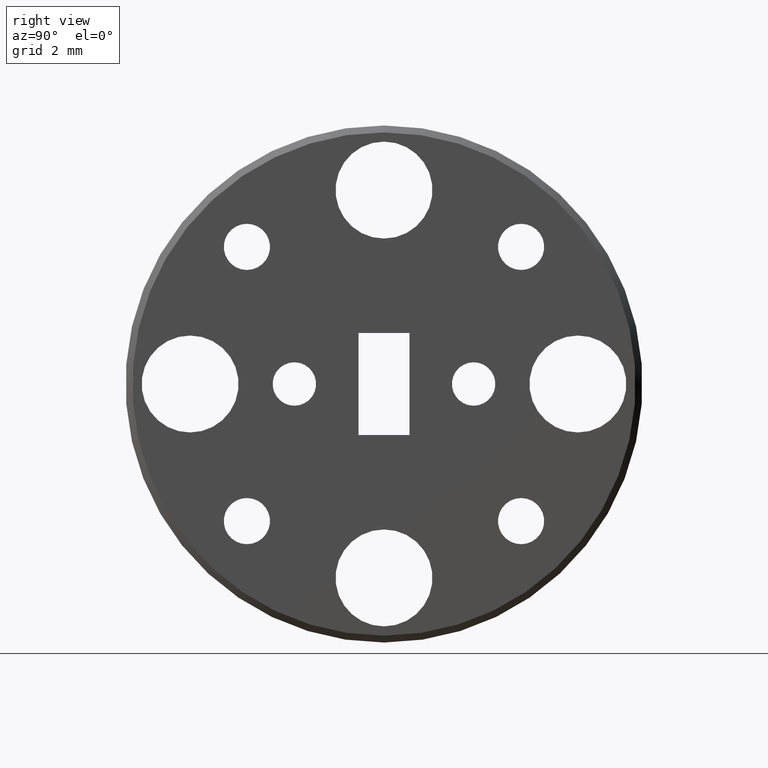
[diagram: clean part render]
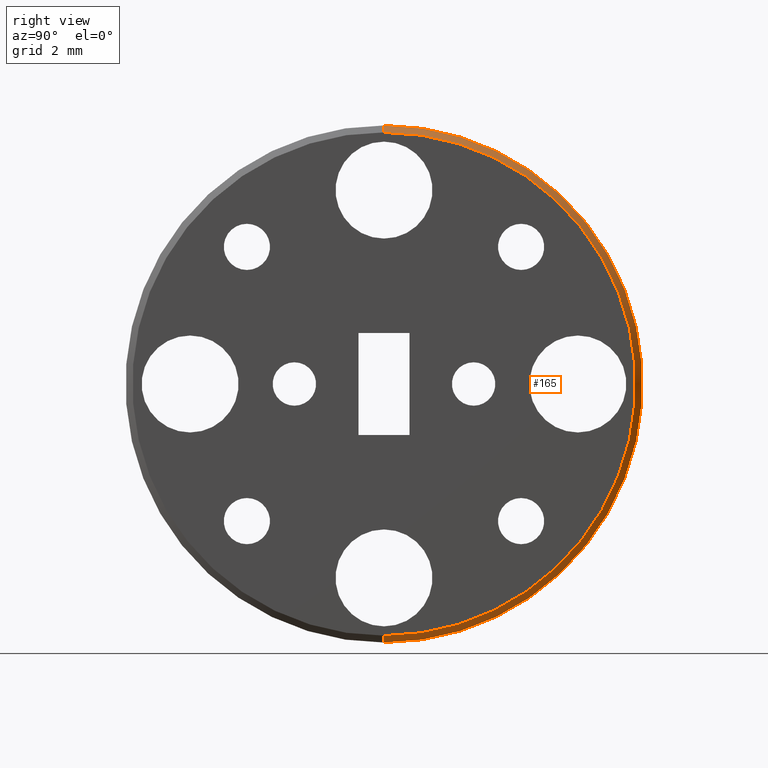
[diagram: same view with one face highlighted and labeled with its STEP entity id]
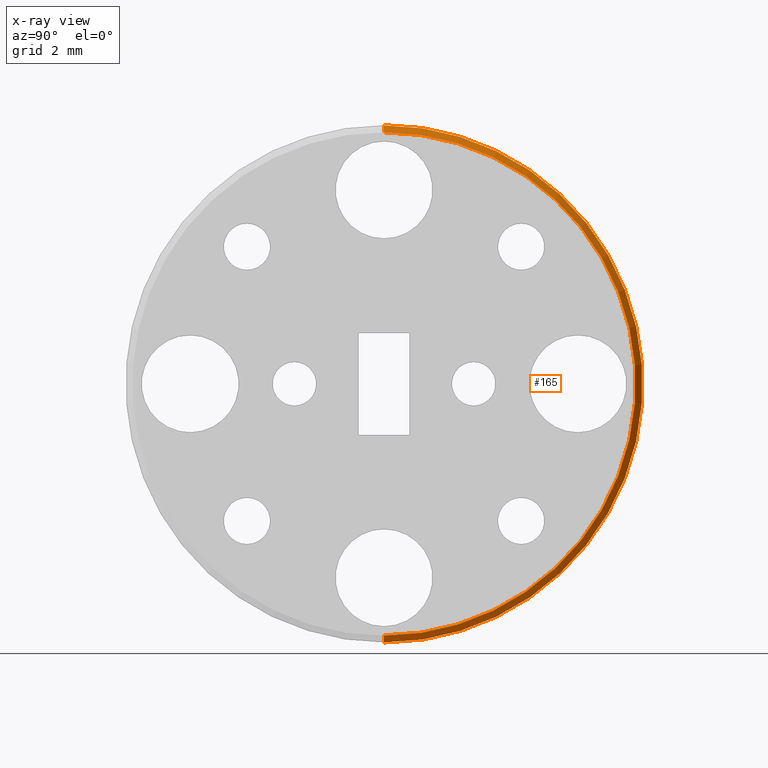
[diagram: x-ray of the same camera — body ghosted, the highlighted face saturated]
A machine part, right view. The second image highlights one B-rep face of the part: STEP entity #165.
The next image is the same camera in x-ray: the body ghosted, the highlighted face saturated — about 0% of this face is hidden behind the body in this view.
In plain terms, the highlighted conical surface has half-angle 45 deg.
Its self-contained STEP definition (entity closure, byte-faithful):
#18 = DIRECTION ( 'NONE',  ( 0.0000000000000000000, 0.0000000000000000000, -1.000000000000000000 ) ) ;
#122 = DIRECTION ( 'NONE',  ( -1.000000000000000000, 0.0000000000000000000, 0.0000000000000000000 ) ) ;
#144 = CARTESIAN_POINT ( 'NONE',  ( 0.05099999999999992000, 0.0000000000000000000, -0.3750000000000000600 ) ) ;
#155 = CARTESIAN_POINT ( 'NONE',  ( 0.06100000000000001900, 4.469960816887838600E-017, -0.3649999999999999400 ) ) ;
#165 = ADVANCED_FACE ( 'NONE', ( #591 ), #1101, .T. ) ;
#204 = CARTESIAN_POINT ( 'NONE',  ( 0.06100000000000001900, 0.0000000000000000000, 0.0000000000000000000 ) ) ;
#293 = CARTESIAN_POINT ( 'NONE',  ( 0.06100000000000001900, 0.0000000000000000000, 0.0000000000000000000 ) ) ;
#300 = DIRECTION ( 'NONE',  ( 0.0000000000000000000, 0.0000000000000000000, 1.000000000000000000 ) ) ;
#321 = ORIENTED_EDGE ( 'NONE', *, *, #659, .F. ) ;
#339 = CARTESIAN_POINT ( 'NONE',  ( 0.05099999999999992000, 0.0000000000000000000, 0.0000000000000000000 ) ) ;
#366 = ORIENTED_EDGE ( 'NONE', *, *, #991, .T. ) ;
#377 = CARTESIAN_POINT ( 'NONE',  ( 0.06100000000000001900, 0.0000000000000000000, 0.3649999999999999400 ) ) ;
#378 = VERTEX_POINT ( 'NONE', #865 ) ;
#400 = EDGE_LOOP ( 'NONE', ( #321, #366, #637, #410 ) ) ;
#410 = ORIENTED_EDGE ( 'NONE', *, *, #1128, .F. ) ;
#441 = VECTOR ( 'NONE', #979, 39.37007874015748900 ) ;
#591 = FACE_OUTER_BOUND ( 'NONE', #400, .T. ) ;
#637 = ORIENTED_EDGE ( 'NONE', *, *, #962, .F. ) ;
#652 = LINE ( 'NONE', #155, #856 ) ;
#659 = EDGE_CURVE ( 'NONE', #378, #682, #1125, .T. ) ;
#666 = AXIS2_PLACEMENT_3D ( 'NONE', #204, #1089, #18 ) ;
#682 = VERTEX_POINT ( 'NONE', #377 ) ;
#690 = DIRECTION ( 'NONE',  ( -0.7071067811865474600, 8.659560562354932900E-017, -0.7071067811865474600 ) ) ;
#693 = AXIS2_PLACEMENT_3D ( 'NONE', #293, #122, #300 ) ;
#759 = AXIS2_PLACEMENT_3D ( 'NONE', #339, #1132, #969 ) ;
#856 = VECTOR ( 'NONE', #690, 39.37007874015748900 ) ;
#865 = CARTESIAN_POINT ( 'NONE',  ( 0.06100000000000001900, 4.531193156845206700E-017, -0.3649999999999999400 ) ) ;
#890 = VERTEX_POINT ( 'NONE', #931 ) ;
#931 = CARTESIAN_POINT ( 'NONE',  ( 0.05099999999999992000, 4.592425496802575500E-017, 0.3750000000000000600 ) ) ;
#958 = VERTEX_POINT ( 'NONE', #144 ) ;
#962 = EDGE_CURVE ( 'NONE', #890, #958, #1060, .T. ) ;
#969 = DIRECTION ( 'NONE',  ( 0.0000000000000000000, 0.0000000000000000000, -1.000000000000000000 ) ) ;
#974 = CARTESIAN_POINT ( 'NONE',  ( 0.06100000000000001900, 0.0000000000000000000, 0.3649999999999999400 ) ) ;
#979 = DIRECTION ( 'NONE',  ( -0.7071067811865474600, 0.0000000000000000000, 0.7071067811865474600 ) ) ;
#991 = EDGE_CURVE ( 'NONE', #378, #958, #652, .T. ) ;
#1005 = LINE ( 'NONE', #974, #441 ) ;
#1060 = CIRCLE ( 'NONE', #759, 0.3750000000000000600 ) ;
#1089 = DIRECTION ( 'NONE',  ( 1.000000000000000000, -0.0000000000000000000, -0.0000000000000000000 ) ) ;
#1101 = CONICAL_SURFACE ( 'NONE', #693, 0.3649999999999999400, 0.7853981633974482800 ) ;
#1125 = CIRCLE ( 'NONE', #666, 0.3649999999999999400 ) ;
#1128 = EDGE_CURVE ( 'NONE', #682, #890, #1005, .T. ) ;
#1132 = DIRECTION ( 'NONE',  ( -1.000000000000000000, 0.0000000000000000000, 0.0000000000000000000 ) ) ;